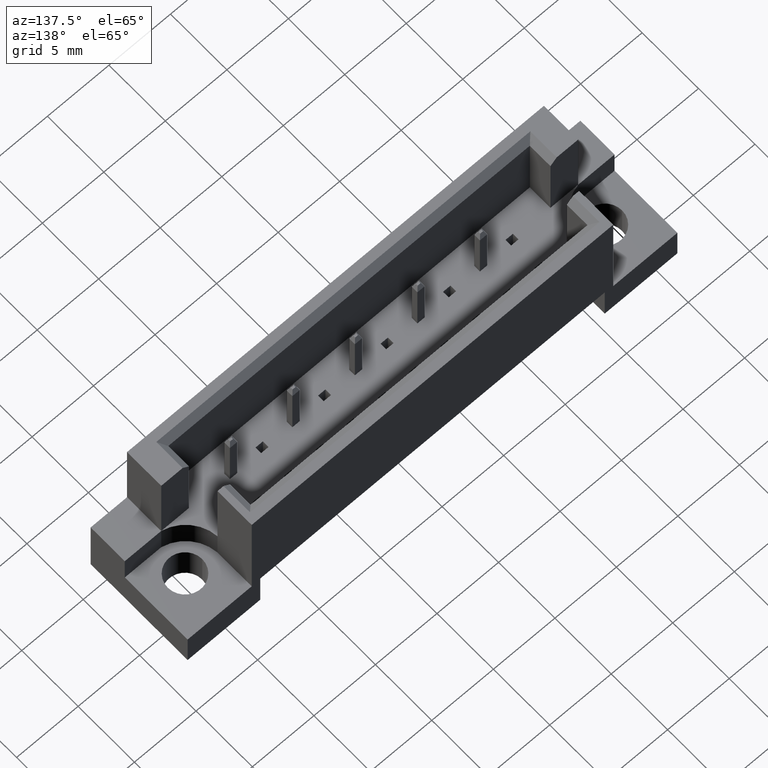
[diagram: clean part render]
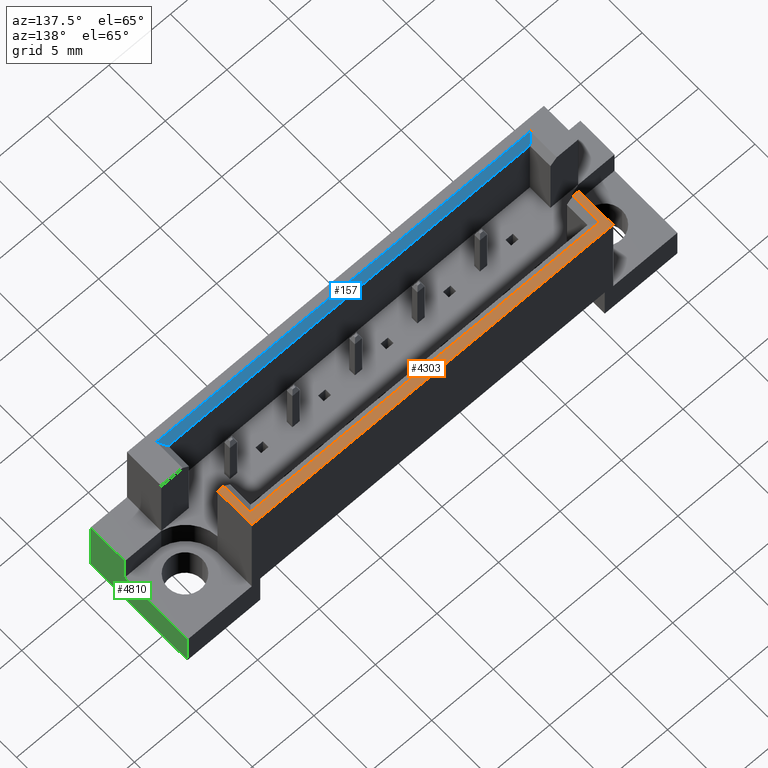
[diagram: same view with three faces highlighted in distinct colors, each labeled with its STEP entity id]
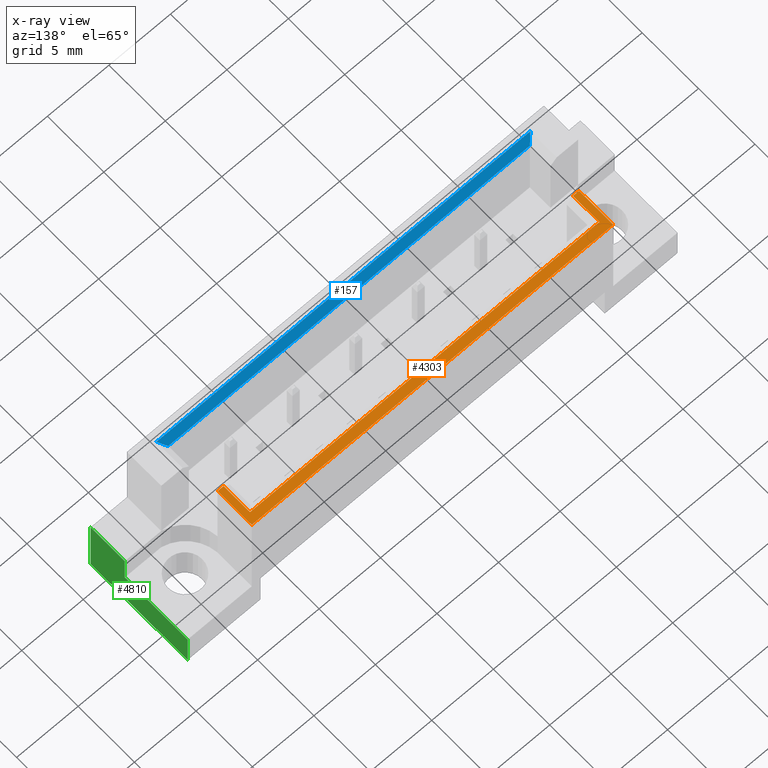
[diagram: x-ray of the same camera — body ghosted, the three highlighted faces saturated]
A machine part, auxiliary view with three faces highlighted in distinct colors.
The next image is the same camera in x-ray (body ghosted, the three faces saturated) — at least one of them is partly hidden behind the body in this view.
Their STEP definitions:

[orange] entity #4303 — the highlighted planar face has unit normal (0, 0, -1).
#20 = LINE ( 'NONE', #2063, #1581 ) ;
#48 = DIRECTION ( 'NONE',  ( -1.000000000000000000, -4.670409358399072282E-16, -0.0000000000000000000 ) ) ;
#65 = LINE ( 'NONE', #1708, #3389 ) ;
#181 = CARTESIAN_POINT ( 'NONE',  ( -14.68999999999999773, 4.299999999999996270, 11.59999999999999964 ) ) ;
#374 = VERTEX_POINT ( 'NONE', #2168 ) ;
#417 = DIRECTION ( 'NONE',  ( 0.0000000000000000000, 0.0000000000000000000, -1.000000000000000000 ) ) ;
#437 = CARTESIAN_POINT ( 'NONE',  ( -19.90000000000000924, 3.608000000000142204, 11.59999999999999964 ) ) ;
#438 = CARTESIAN_POINT ( 'NONE',  ( -14.19800000000000217, -4.300000000000003375, 11.59999999999999964 ) ) ;
#515 = CARTESIAN_POINT ( 'NONE',  ( 14.19800000000000217, 1.270000000000029994, 11.59999999999999964 ) ) ;
#526 = CARTESIAN_POINT ( 'NONE',  ( 14.19800000000000217, -4.300000000000003375, 11.59999999999999964 ) ) ;
#594 = VERTEX_POINT ( 'NONE', #515 ) ;
#807 = VERTEX_POINT ( 'NONE', #3383 ) ;
#875 = EDGE_CURVE ( 'NONE', #4022, #4828, #4132, .T. ) ;
#886 = DIRECTION ( 'NONE',  ( -1.000000000000000000, -1.307580509530256796E-16, 0.0000000000000000000 ) ) ;
#929 = ORIENTED_EDGE ( 'NONE', *, *, #3172, .F. ) ;
#1311 = DIRECTION ( 'NONE',  ( 0.0000000000000000000, -1.000000000000000000, 0.0000000000000000000 ) ) ;
#1391 = VECTOR ( 'NONE', #1311, 1000.000000000000000 ) ;
#1447 = CARTESIAN_POINT ( 'NONE',  ( -14.68999999999999773, 1.270000000000030216, 11.59999999999999964 ) ) ;
#1548 = VERTEX_POINT ( 'NONE', #181 ) ;
#1581 = VECTOR ( 'NONE', #48, 1000.000000000000000 ) ;
#1624 = VERTEX_POINT ( 'NONE', #1447 ) ;
#1685 = DIRECTION ( 'NONE',  ( -1.000000000000000000, 4.670409358399072282E-16, 0.0000000000000000000 ) ) ;
#1708 = CARTESIAN_POINT ( 'NONE',  ( -13.68999999999999417, 1.270000000000029772, 11.59999999999999964 ) ) ;
#1718 = DIRECTION ( 'NONE',  ( 0.0000000000000000000, 1.000000000000000000, 0.0000000000000000000 ) ) ;
#1755 = ORIENTED_EDGE ( 'NONE', *, *, #4794, .T. ) ;
#2038 = DIRECTION ( 'NONE',  ( -1.000000000000000000, 0.0000000000000000000, -0.0000000000000000000 ) ) ;
#2063 = CARTESIAN_POINT ( 'NONE',  ( 13.68999999999999417, 1.270000000000029772, 11.59999999999999964 ) ) ;
#2099 = VECTOR ( 'NONE', #3224, 1000.000000000000000 ) ;
#2112 = LINE ( 'NONE', #3699, #3669 ) ;
#2168 = CARTESIAN_POINT ( 'NONE',  ( 14.19800000000000217, 3.608000000000142204, 11.59999999999999964 ) ) ;
#2420 = FACE_OUTER_BOUND ( 'NONE', #5177, .T. ) ;
#2472 = ORIENTED_EDGE ( 'NONE', *, *, #3094, .F. ) ;
#2490 = LINE ( 'NONE', #437, #2099 ) ;
#2693 = EDGE_CURVE ( 'NONE', #807, #3500, #2876, .T. ) ;
#2809 = CARTESIAN_POINT ( 'NONE',  ( -19.90000000000000924, -4.300000000000003375, 11.59999999999999964 ) ) ;
#2876 = LINE ( 'NONE', #3725, #1391 ) ;
#3001 = VECTOR ( 'NONE', #3288, 1000.000000000000000 ) ;
#3019 = VECTOR ( 'NONE', #4869, 1000.000000000000000 ) ;
#3094 = EDGE_CURVE ( 'NONE', #3500, #594, #20, .T. ) ;
#3113 = ORIENTED_EDGE ( 'NONE', *, *, #3118, .T. ) ;
#3118 = EDGE_CURVE ( 'NONE', #374, #594, #3258, .T. ) ;
#3172 = EDGE_CURVE ( 'NONE', #1624, #1548, #2112, .T. ) ;
#3224 = DIRECTION ( 'NONE',  ( 1.000000000000000000, 0.0000000000000000000, 0.0000000000000000000 ) ) ;
#3258 = LINE ( 'NONE', #526, #3001 ) ;
#3288 = DIRECTION ( 'NONE',  ( 0.0000000000000000000, -1.000000000000000000, 0.0000000000000000000 ) ) ;
#3383 = CARTESIAN_POINT ( 'NONE',  ( 14.68999999999999773, 4.299999999999992717, 11.59999999999999964 ) ) ;
#3389 = VECTOR ( 'NONE', #1685, 1000.000000000000000 ) ;
#3500 = VERTEX_POINT ( 'NONE', #3986 ) ;
#3569 = EDGE_CURVE ( 'NONE', #4022, #1624, #65, .T. ) ;
#3669 = VECTOR ( 'NONE', #1718, 1000.000000000000000 ) ;
#3699 = CARTESIAN_POINT ( 'NONE',  ( -14.68999999999999773, 4.299999999999996270, 11.59999999999999964 ) ) ;
#3725 = CARTESIAN_POINT ( 'NONE',  ( 14.68999999999999773, 4.299999999999992717, 11.59999999999999964 ) ) ;
#3774 = ORIENTED_EDGE ( 'NONE', *, *, #2693, .F. ) ;
#3949 = ORIENTED_EDGE ( 'NONE', *, *, #4800, .T. ) ;
#3955 = ORIENTED_EDGE ( 'NONE', *, *, #875, .T. ) ;
#3986 = CARTESIAN_POINT ( 'NONE',  ( 14.68999999999999773, 1.270000000000030216, 11.59999999999999964 ) ) ;
#4022 = VERTEX_POINT ( 'NONE', #4798 ) ;
#4073 = CARTESIAN_POINT ( 'NONE',  ( -14.19800000000000217, 3.608000000000142204, 11.59999999999999964 ) ) ;
#4106 = LINE ( 'NONE', #4419, #4171 ) ;
#4132 = LINE ( 'NONE', #438, #3019 ) ;
#4171 = VECTOR ( 'NONE', #886, 1000.000000000000000 ) ;
#4213 = ORIENTED_EDGE ( 'NONE', *, *, #3569, .F. ) ;
#4303 = ADVANCED_FACE ( 'NONE', ( #2420 ), #4792, .F. ) ;
#4419 = CARTESIAN_POINT ( 'NONE',  ( 19.89999999999999503, 4.300000000000001599, 11.59999999999999964 ) ) ;
#4792 = PLANE ( 'NONE',  #5011 ) ;
#4794 = EDGE_CURVE ( 'NONE', #807, #1548, #4106, .T. ) ;
#4798 = CARTESIAN_POINT ( 'NONE',  ( -14.19800000000000217, 1.270000000000029994, 11.59999999999999964 ) ) ;
#4800 = EDGE_CURVE ( 'NONE', #4828, #374, #2490, .T. ) ;
#4828 = VERTEX_POINT ( 'NONE', #4073 ) ;
#4869 = DIRECTION ( 'NONE',  ( 0.0000000000000000000, 1.000000000000000000, 0.0000000000000000000 ) ) ;
#5011 = AXIS2_PLACEMENT_3D ( 'NONE', #2809, #417, #2038 ) ;
#5177 = EDGE_LOOP ( 'NONE', ( #2472, #3774, #1755, #929, #4213, #3955, #3949, #3113 ) ) ;

[blue] entity #157 — the highlighted planar face has unit normal (0, -0.7071, -0.7071).
#134 = EDGE_CURVE ( 'NONE', #1738, #4218, #2008, .T. ) ;
#157 = ADVANCED_FACE ( 'NONE', ( #2897 ), #1615, .F. ) ;
#236 = AXIS2_PLACEMENT_3D ( 'NONE', #1703, #2811, #4064 ) ;
#360 = LINE ( 'NONE', #2399, #1421 ) ;
#765 = CARTESIAN_POINT ( 'NONE',  ( -15.19800000000000750, -3.608000000000144425, 11.59999999999999964 ) ) ;
#861 = CARTESIAN_POINT ( 'NONE',  ( 14.68999999999999950, -3.100000000000135536, 11.09199999999999697 ) ) ;
#876 = EDGE_LOOP ( 'NONE', ( #1850, #5077, #1733, #1400 ) ) ;
#943 = EDGE_CURVE ( 'NONE', #3188, #1738, #2929, .T. ) ;
#1400 = ORIENTED_EDGE ( 'NONE', *, *, #943, .F. ) ;
#1421 = VECTOR ( 'NONE', #4814, 1000.000000000000000 ) ;
#1615 = PLANE ( 'NONE',  #236 ) ;
#1703 = CARTESIAN_POINT ( 'NONE',  ( 14.68999999999999950, -3.100000000000135536, 11.09199999999999697 ) ) ;
#1733 = ORIENTED_EDGE ( 'NONE', *, *, #134, .F. ) ;
#1738 = VERTEX_POINT ( 'NONE', #765 ) ;
#1850 = ORIENTED_EDGE ( 'NONE', *, *, #4870, .T. ) ;
#2008 = LINE ( 'NONE', #3235, #4591 ) ;
#2130 = CARTESIAN_POINT ( 'NONE',  ( -19.90000000000000924, -3.608000000000144425, 11.59999999999999964 ) ) ;
#2308 = VERTEX_POINT ( 'NONE', #3786 ) ;
#2399 = CARTESIAN_POINT ( 'NONE',  ( 14.68999999999999950, -3.100000000000135536, 11.09199999999999697 ) ) ;
#2811 = DIRECTION ( 'NONE',  ( 0.0000000000000000000, -0.7071067811865426878, -0.7071067811865523467 ) ) ;
#2861 = LINE ( 'NONE', #861, #3102 ) ;
#2897 = FACE_OUTER_BOUND ( 'NONE', #876, .T. ) ;
#2929 = LINE ( 'NONE', #2130, #4353 ) ;
#3102 = VECTOR ( 'NONE', #4052, 1000.000000000000114 ) ;
#3188 = VERTEX_POINT ( 'NONE', #3413 ) ;
#3225 = DIRECTION ( 'NONE',  ( -1.000000000000000000, 0.0000000000000000000, 0.0000000000000000000 ) ) ;
#3235 = CARTESIAN_POINT ( 'NONE',  ( -14.68999999999999950, -3.100000000000135536, 11.09199999999999697 ) ) ;
#3413 = CARTESIAN_POINT ( 'NONE',  ( 15.19800000000000928, -3.608000000000144425, 11.59999999999999964 ) ) ;
#3786 = CARTESIAN_POINT ( 'NONE',  ( 14.68999999999999950, -3.100000000000135536, 11.09199999999999697 ) ) ;
#4052 = DIRECTION ( 'NONE',  ( -0.5773502691896296168, 0.5773502691896278405, -0.5773502691896198469 ) ) ;
#4064 = DIRECTION ( 'NONE',  ( 0.0000000000000000000, 0.7071067811865523467, -0.7071067811865426878 ) ) ;
#4218 = VERTEX_POINT ( 'NONE', #5134 ) ;
#4280 = EDGE_CURVE ( 'NONE', #4218, #2308, #360, .T. ) ;
#4353 = VECTOR ( 'NONE', #3225, 1000.000000000000000 ) ;
#4591 = VECTOR ( 'NONE', #4854, 1000.000000000000000 ) ;
#4814 = DIRECTION ( 'NONE',  ( 1.000000000000000000, 0.0000000000000000000, 0.0000000000000000000 ) ) ;
#4854 = DIRECTION ( 'NONE',  ( 0.5773502691896283956, 0.5773502691896283956, -0.5773502691896205130 ) ) ;
#4870 = EDGE_CURVE ( 'NONE', #3188, #2308, #2861, .T. ) ;
#5077 = ORIENTED_EDGE ( 'NONE', *, *, #4280, .F. ) ;
#5134 = CARTESIAN_POINT ( 'NONE',  ( -14.68999999999999950, -3.100000000000135536, 11.09199999999999697 ) ) ;

[green] entity #4810 — the highlighted planar face has unit normal (-1, 0, 0).
#1 = EDGE_CURVE ( 'NONE', #3268, #2663, #3667, .T. ) ;
#103 = CARTESIAN_POINT ( 'NONE',  ( 19.90000000000000213, 4.300000000000001599, 5.199999999999999289 ) ) ;
#116 = DIRECTION ( 'NONE',  ( -1.000000000000000000, 0.0000000000000000000, 0.0000000000000000000 ) ) ;
#185 = ORIENTED_EDGE ( 'NONE', *, *, #1865, .F. ) ;
#254 = VECTOR ( 'NONE', #1674, 1000.000000000000000 ) ;
#390 = VERTEX_POINT ( 'NONE', #2615 ) ;
#527 = LINE ( 'NONE', #2961, #2843 ) ;
#530 = CARTESIAN_POINT ( 'NONE',  ( 19.89999999999999503, 4.300000000000001599, 0.0000000000000000000 ) ) ;
#531 = VECTOR ( 'NONE', #1920, 1000.000000000000000 ) ;
#547 = CARTESIAN_POINT ( 'NONE',  ( 19.89999999999999503, 4.300000000000001599, 0.0000000000000000000 ) ) ;
#670 = VECTOR ( 'NONE', #4273, 1000.000000000000000 ) ;
#724 = VERTEX_POINT ( 'NONE', #2973 ) ;
#1063 = CARTESIAN_POINT ( 'NONE',  ( 19.89999999999999503, -4.299999999999998046, 0.0000000000000000000 ) ) ;
#1221 = CARTESIAN_POINT ( 'NONE',  ( 19.89999999999999503, 4.300000000000001599, 11.59999999999999964 ) ) ;
#1226 = LINE ( 'NONE', #103, #1785 ) ;
#1547 = CARTESIAN_POINT ( 'NONE',  ( 19.90000000000000213, 4.299999999999990941, 2.899999999999999911 ) ) ;
#1583 = VECTOR ( 'NONE', #2933, 1000.000000000000000 ) ;
#1625 = EDGE_LOOP ( 'NONE', ( #4023, #4826, #185, #4659, #4028, #2644 ) ) ;
#1674 = DIRECTION ( 'NONE',  ( -0.0000000000000000000, -0.0000000000000000000, -1.000000000000000000 ) ) ;
#1717 = DIRECTION ( 'NONE',  ( -4.034240641806528883E-16, 1.000000000000000000, -0.0000000000000000000 ) ) ;
#1722 = EDGE_CURVE ( 'NONE', #3582, #3268, #3492, .T. ) ;
#1728 = LINE ( 'NONE', #1787, #254 ) ;
#1785 = VECTOR ( 'NONE', #1717, 1000.000000000000000 ) ;
#1787 = CARTESIAN_POINT ( 'NONE',  ( 19.90000000000000213, -1.270000000000036211, 19.22686042877410628 ) ) ;
#1865 = EDGE_CURVE ( 'NONE', #3582, #2291, #1226, .T. ) ;
#1920 = DIRECTION ( 'NONE',  ( 0.0000000000000000000, -1.000000000000000000, 0.0000000000000000000 ) ) ;
#2057 = FACE_OUTER_BOUND ( 'NONE', #1625, .T. ) ;
#2154 = EDGE_CURVE ( 'NONE', #2291, #724, #1728, .T. ) ;
#2269 = DIRECTION ( 'NONE',  ( -0.0000000000000000000, -0.0000000000000000000, -1.000000000000000000 ) ) ;
#2291 = VERTEX_POINT ( 'NONE', #4592 ) ;
#2344 = CARTESIAN_POINT ( 'NONE',  ( 19.89999999999999503, -4.299999999999998046, 11.59999999999999964 ) ) ;
#2615 = CARTESIAN_POINT ( 'NONE',  ( 19.90000000000000213, 4.299999999999990941, 2.899999999999999911 ) ) ;
#2644 = ORIENTED_EDGE ( 'NONE', *, *, #4471, .F. ) ;
#2663 = VERTEX_POINT ( 'NONE', #530 ) ;
#2843 = VECTOR ( 'NONE', #2269, 1000.000000000000000 ) ;
#2933 = DIRECTION ( 'NONE',  ( -0.0000000000000000000, 1.000000000000000000, -0.0000000000000000000 ) ) ;
#2961 = CARTESIAN_POINT ( 'NONE',  ( 19.89999999999999503, 4.300000000000001599, 11.59999999999999964 ) ) ;
#2973 = CARTESIAN_POINT ( 'NONE',  ( 19.90000000000000213, -1.270000000000036211, 2.899999999999999911 ) ) ;
#3268 = VERTEX_POINT ( 'NONE', #1063 ) ;
#3412 = EDGE_CURVE ( 'NONE', #390, #724, #4686, .T. ) ;
#3492 = LINE ( 'NONE', #2344, #670 ) ;
#3582 = VERTEX_POINT ( 'NONE', #4498 ) ;
#3667 = LINE ( 'NONE', #547, #1583 ) ;
#3712 = PLANE ( 'NONE',  #4848 ) ;
#4023 = ORIENTED_EDGE ( 'NONE', *, *, #3412, .T. ) ;
#4028 = ORIENTED_EDGE ( 'NONE', *, *, #1, .T. ) ;
#4273 = DIRECTION ( 'NONE',  ( -0.0000000000000000000, -0.0000000000000000000, -1.000000000000000000 ) ) ;
#4471 = EDGE_CURVE ( 'NONE', #390, #2663, #527, .T. ) ;
#4478 = DIRECTION ( 'NONE',  ( 0.0000000000000000000, 0.0000000000000000000, 1.000000000000000000 ) ) ;
#4498 = CARTESIAN_POINT ( 'NONE',  ( 19.90000000000000568, -4.299999999999998046, 5.199999999999999289 ) ) ;
#4592 = CARTESIAN_POINT ( 'NONE',  ( 19.90000000000000213, -1.270000000000036211, 5.200000000000000178 ) ) ;
#4659 = ORIENTED_EDGE ( 'NONE', *, *, #1722, .T. ) ;
#4686 = LINE ( 'NONE', #1547, #531 ) ;
#4810 = ADVANCED_FACE ( 'NONE', ( #2057 ), #3712, .F. ) ;
#4826 = ORIENTED_EDGE ( 'NONE', *, *, #2154, .F. ) ;
#4848 = AXIS2_PLACEMENT_3D ( 'NONE', #1221, #116, #4478 ) ;